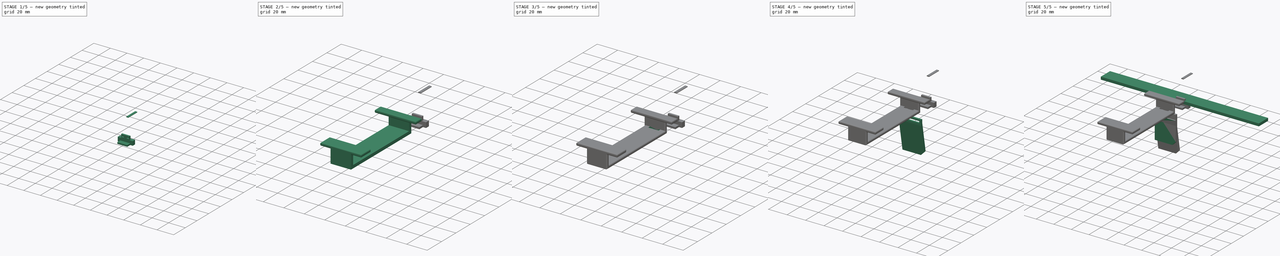
[diagram: build sequence overview — one tinted view per stage of 5, left to right]
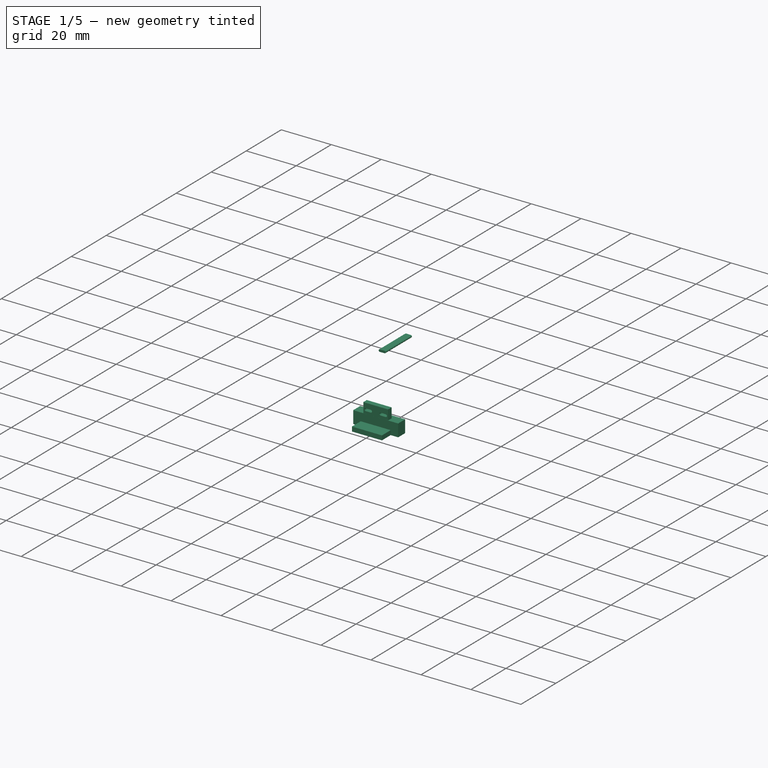
[diagram: stage 1 of 5 — iso view after this stage's code; geometry added in this stage tinted green]
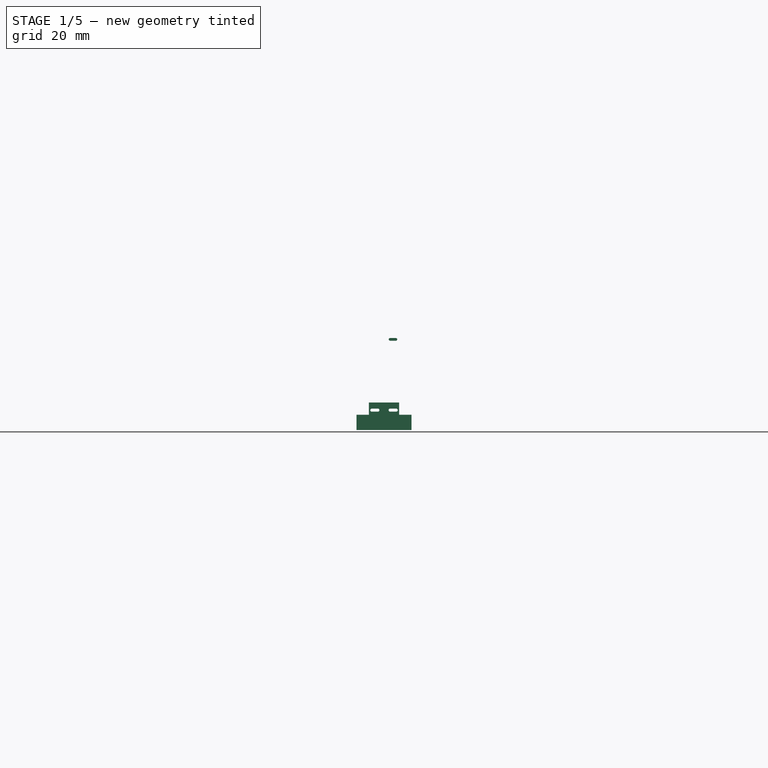
[diagram: stage 1 of 5 — front view after this stage's code; geometry added in this stage tinted green]
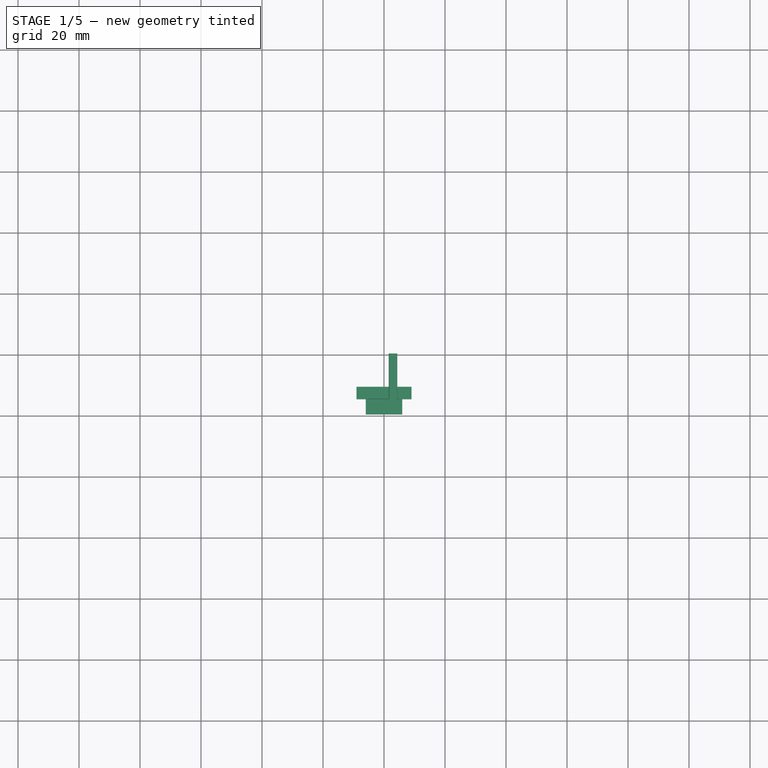
[diagram: stage 1 of 5 — top view after this stage's code; geometry added in this stage tinted green]
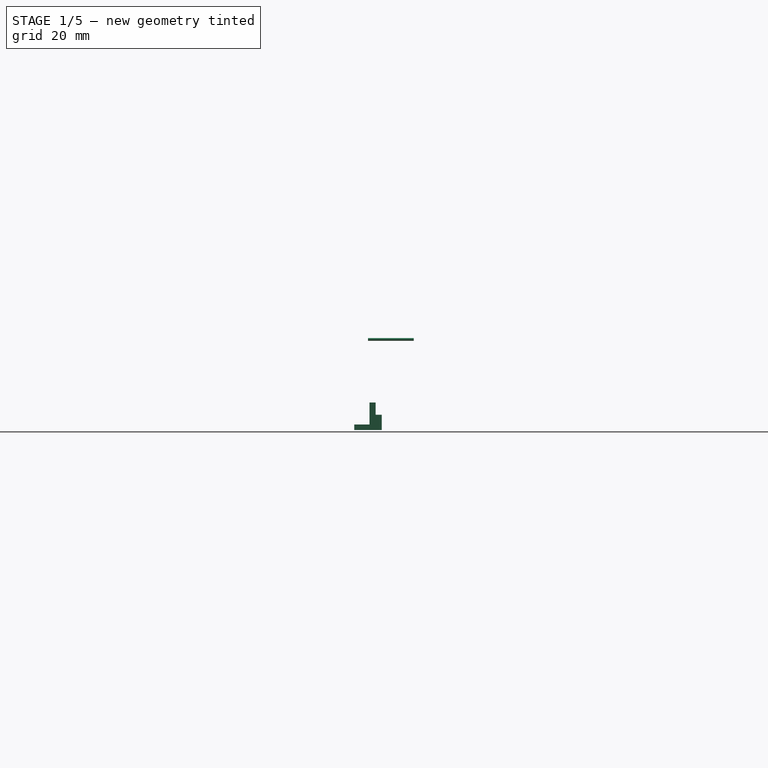
[diagram: stage 1 of 5 — right view after this stage's code; geometry added in this stage tinted green]
FCSTD DOCUMENT  (FreeCAD 0.16R)
Label: xiaomi coche
License: All rights reserved
LicenseURL: http://en.wikipedia.org/wiki/All_rights_reserved
objects: Sketcher::SketchObject×16, PartDesign::Pad×11, PartDesign::Fillet×8, PartDesign::Pocket×5, Part::Feature×4, Part::MultiFuse×1
note: 61 computed .brp shape members not serialized (recipe doc carries the construction recipe); baked Part::Feature solids carry a one-line shape summary decoded from their .brp

FEATURE [Sketcher::SketchObject] Sketch008
  Placement = pos=(0,-10.4875,0) rot=(0,0.707107,0.707107;3.14159rad)
  sketch-geometry (4):
    g0: LineSegment StartX=-9 StartY=1 StartZ=0 EndX=9 EndY=1 EndZ=0
    g1: LineSegment StartX=9 StartY=1 StartZ=0 EndX=9 EndY=-4 EndZ=0
    g2: LineSegment StartX=9 StartY=-4 StartZ=0 EndX=-9 EndY=-4 EndZ=0
    g3: LineSegment StartX=-9 StartY=-4 StartZ=0 EndX=-9 EndY=1 EndZ=0
  constraints (12):
    c: Coincident(g0,g1)
    c: Coincident(g1,g2)
    c: Coincident(g2,g3)
    c: Coincident(g3,g0)
    c: Horizontal(g0)
    c: Horizontal(g2)
    c: Vertical(g1)
    c: Vertical(g3)
    c: DistanceY(g-1,g0) = 1
    c: Symmetric(g0,g0,g-2)
    c: DistanceY(g2,g0) = 5
    c: DistanceX(g2,g2) = 18
FEATURE [PartDesign::Pad] Pad008
  Length = 4
  Length2 = 100
  Placement = pos=(0,-10.4875,0) rot=(0,0.707107,0.707107;3.14159rad)
  Reversed = true
  Sketch = -> Sketch008
  Type = 0
FEATURE [Sketcher::SketchObject] Sketch010
  Placement = pos=(0,-10.4875,1) rot=(0,0,1;0rad)
  Support = -> Pad008 [Face1]
  sketch-geometry (4):
    g0: LineSegment StartX=-4.95 StartY=-2 StartZ=0 EndX=4.95 EndY=-2 EndZ=0
    g1: LineSegment StartX=4.95 StartY=-2 StartZ=0 EndX=4.95 EndY=-3.99 EndZ=0
    g2: LineSegment StartX=4.95 StartY=-3.99 StartZ=0 EndX=-4.95 EndY=-3.99 EndZ=0
    g3: LineSegment StartX=-4.95 StartY=-3.99 StartZ=0 EndX=-4.95 EndY=-2 EndZ=0
  constraints (13):
    c: Coincident(g0,g1)
    c: Coincident(g1,g2)
    c: Coincident(g2,g3)
    c: Coincident(g3,g0)
    c: Horizontal(g0)
    c: Horizontal(g2)
    c: Vertical(g1)
    c: Vertical(g3)
    c: DistanceX(g2,g2) = 9.9
    c: Symmetric(g1,g2,g-2)
    c: DistanceY(g3,g3) = 1.99
    c: Symmetric(g1,g2,g-2)
    c: DistanceY(g-1,g0) = -2
FEATURE [PartDesign::Pad] Pad009  label="Union"
  Length = 4
  Length2 = 100
  Placement = pos=(0,-10.4875,0) rot=(0,0.707107,0.707107;3.14159rad)
  Sketch = -> Sketch010
  Type = 0
FEATURE [Sketcher::SketchObject] Sketch013
  ExternalGeometry = -> [Pad009]
  Placement = pos=(0,-12.4875,0) rot=(0,0.707107,0.707107;3.14159rad)
  Support = -> Pad009 [Face7]
  sketch-geometry (8):
    g0: ArcOfCircle CenterX=2 CenterY=2.5 CenterZ=0 NormalX=0 NormalY=0 NormalZ=1 Radius=0.5 StartAngle=1.5708 EndAngle=4.71239
    g1: ArcOfCircle CenterX=4 CenterY=2.5 CenterZ=0 NormalX=0 NormalY=0 NormalZ=1 Radius=0.5 StartAngle=4.71239 EndAngle=7.85398
    g2: LineSegment StartX=2 StartY=2 StartZ=0 EndX=4 EndY=2 EndZ=0
    g3: LineSegment StartX=2 StartY=3 StartZ=0 EndX=4 EndY=3 EndZ=0
    g4: ArcOfCircle CenterX=-4 CenterY=2.5 CenterZ=0 NormalX=0 NormalY=0 NormalZ=1 Radius=0.5 StartAngle=1.5708 EndAngle=4.71239
    g5: ArcOfCircle CenterX=-2 CenterY=2.5 CenterZ=0 NormalX=0 NormalY=0 NormalZ=1 Radius=0.5 StartAngle=4.71239 EndAngle=7.85398
    g6: LineSegment StartX=-4 StartY=2 StartZ=0 EndX=-2 EndY=2 EndZ=0
    g7: LineSegment StartX=-4 StartY=3 StartZ=0 EndX=-2 EndY=3 EndZ=0
  constraints (20):
    c: Tangent(g0,g3) = 1.5708
    c: Tangent(g0,g2) = -1.5708
    c: Tangent(g2,g1) = -1.5708
    c: Tangent(g3,g1) = 1.5708
    c: Horizontal(g2)
    c: Equal(g0,g1)
    c: Tangent(g4,g7) = 1.5708
    c: Tangent(g4,g6) = -1.5708
    c: Tangent(g6,g5) = -1.5708
    c: Tangent(g7,g5) = 1.5708
    c: Horizontal(g6)
    c: Equal(g4,g5)
    c: DistanceY(g5,g5) = 1
    c: DistanceY(g0,g0) = 1
    c: DistanceY(g-3,g0) = 1
    c: Symmetric(g5,g0,g-2)
    c: DistanceX(g5,g-1) = 2
    c: DistanceX(g4,g-1) = 4
    c: Symmetric(g1,g4,g-2)
    c: Symmetric(g1,g4,g-2)
FEATURE [PartDesign::Pocket] Pocket006
  Length = 5
  Placement = pos=(0,-10.4875,0) rot=(0,0.707107,0.707107;3.14159rad)
  Sketch = -> Sketch013
  Type = 0
FEATURE [Sketcher::SketchObject] Sketch014
  ExternalGeometry = -> [Pocket006]
  Placement = pos=(0,-14.4875,0) rot=(0,0.707107,-0.707107;3.14159rad)
  Support = -> Pocket006 [Face5]
  sketch-geometry (4):
    g0: LineSegment StartX=-6 StartY=4 StartZ=0 EndX=6 EndY=4 EndZ=0
    g1: LineSegment StartX=6 StartY=4 StartZ=0 EndX=6 EndY=2.2 EndZ=0
    g2: LineSegment StartX=6 StartY=2.2 StartZ=0 EndX=-6 EndY=2.2 EndZ=0
    g3: LineSegment StartX=-6 StartY=2.2 StartZ=0 EndX=-6 EndY=4 EndZ=0
  constraints (12):
    c: Coincident(g0,g1)
    c: Coincident(g1,g2)
    c: Coincident(g2,g3)
    c: Coincident(g3,g0)
    c: Horizontal(g0)
    c: Horizontal(g2)
    c: Vertical(g1)
    c: Vertical(g3)
    c: Symmetric(g0,g0,g-2)
    c: PointOnObject(g0,g-3)
    c: DistanceX(g2,g2) = 12
    c: DistanceY(g1,g1) = 1.8
FEATURE [PartDesign::Pad] Pad011  label="Union Final"
  Length = 5
  Length2 = 100
  Placement = pos=(0,-10.4875,0) rot=(0,0.707107,0.707107;3.14159rad)
  Sketch = -> Sketch014
  Type = 0
FEATURE [Sketcher::SketchObject] Sketch015
  Placement = pos=(0,0,0) rot=(0,0.707107,0.707107;3.14159rad)
  sketch-geometry (4):
    g0: ArcOfCircle CenterX=-3.9 CenterY=25.69 CenterZ=0 NormalX=0 NormalY=0 NormalZ=1 Radius=0.45 StartAngle=1.5708 EndAngle=4.71239
    g1: ArcOfCircle CenterX=-2 CenterY=25.69 CenterZ=0 NormalX=0 NormalY=0 NormalZ=1 Radius=0.45 StartAngle=4.71239 EndAngle=7.85398
    g2: LineSegment StartX=-3.9 StartY=25.24 StartZ=0 EndX=-2 EndY=25.24 EndZ=0
    g3: LineSegment StartX=-3.9 StartY=26.14 StartZ=0 EndX=-2 EndY=26.14 EndZ=0
  constraints (9):
    c: Tangent(g0,g3) = 1.5708
    c: Tangent(g0,g2) = -1.5708
    c: Tangent(g2,g1) = -1.5708
    c: Tangent(g3,g1) = 1.5708
    c: Horizontal(g2)
    c: Equal(g0,g1)
    c: DistanceX(g1,g-1) = 2
    c: DistanceY(g1,g1) = 0.9
    c: DistanceX(g0,g-1) = 3.9
FEATURE [PartDesign::Pad] Pad012  label="Perno union"
  Length = 15
  Length2 = 100
  Placement = pos=(0,0,0) rot=(0,0.707107,0.707107;3.14159rad)
  Reversed = true
  Sketch = -> Sketch015
  Type = 0
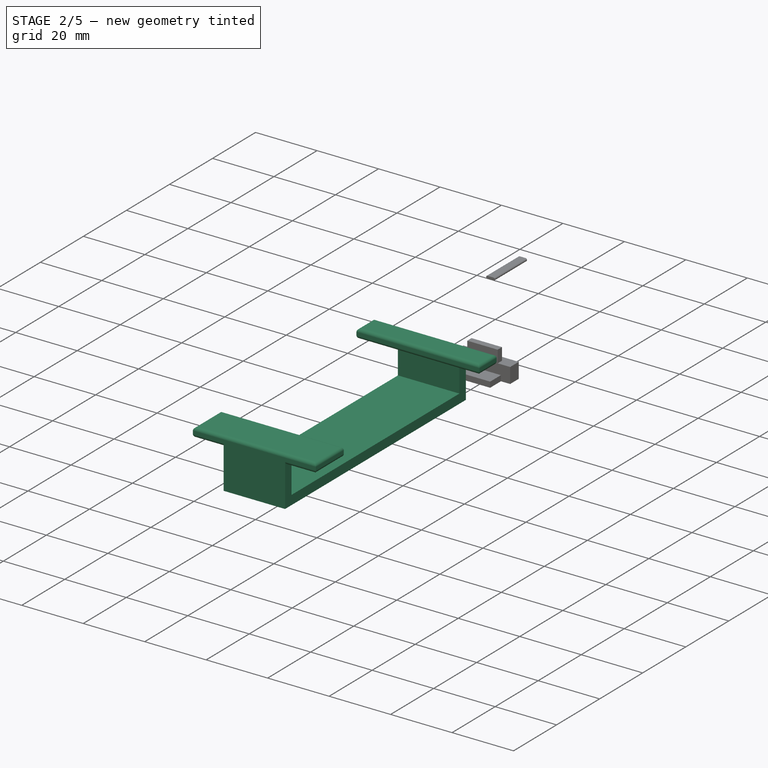
[diagram: stage 2 of 5 — iso view after this stage's code; geometry added in this stage tinted green]
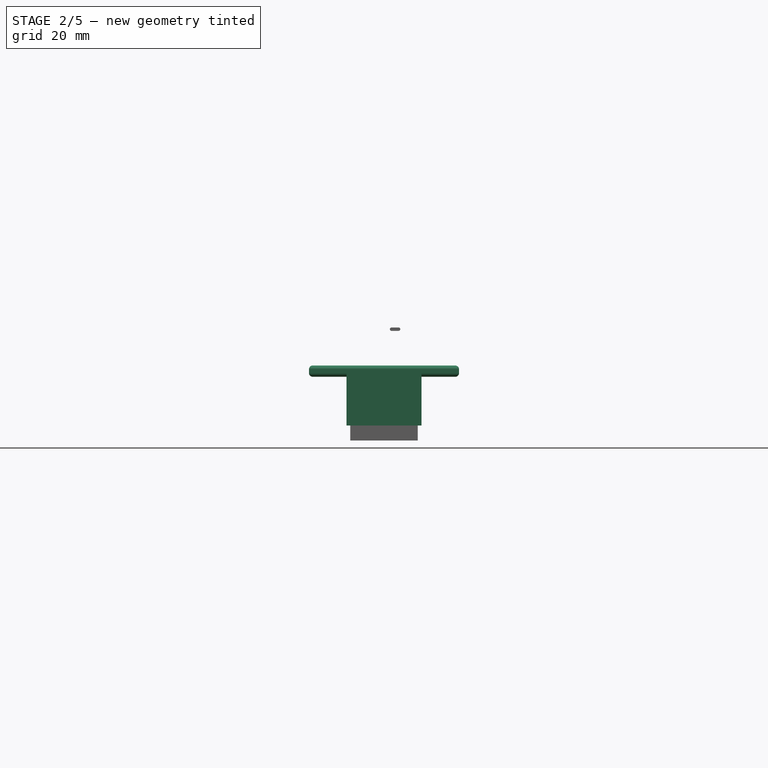
[diagram: stage 2 of 5 — front view after this stage's code; geometry added in this stage tinted green]
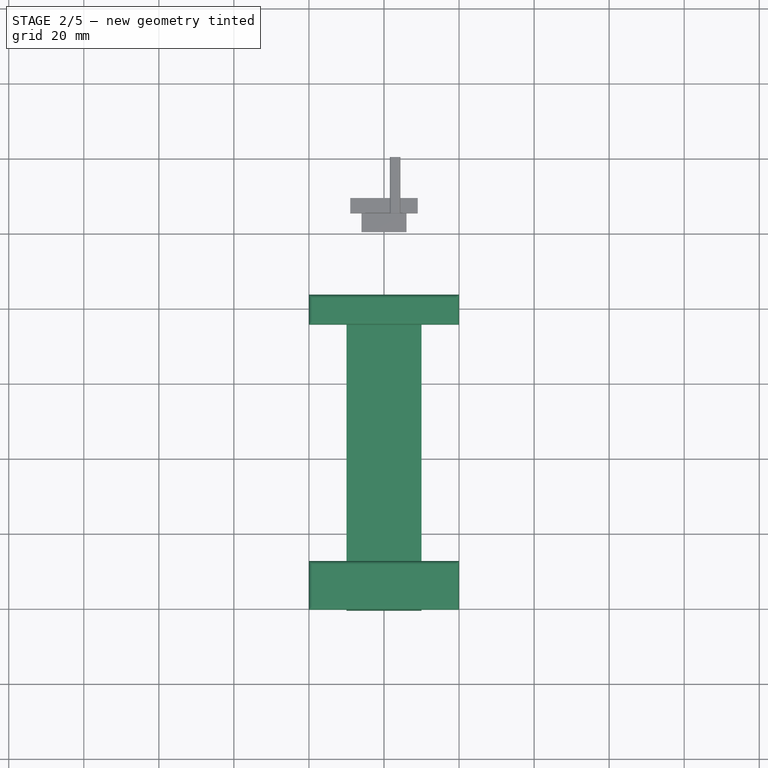
[diagram: stage 2 of 5 — top view after this stage's code; geometry added in this stage tinted green]
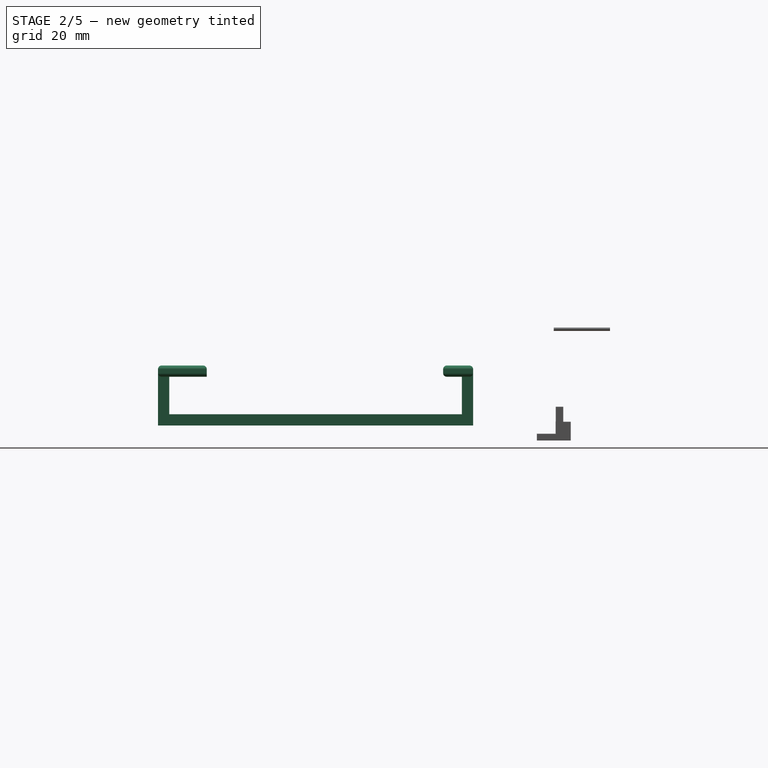
[diagram: stage 2 of 5 — right view after this stage's code; geometry added in this stage tinted green]
FEATURE [Sketcher::SketchObject] Sketch001
  sketch-geometry (4):
    g0: LineSegment StartX=-10 StartY=-36.4875 StartZ=0 EndX=10 EndY=-36.4875 EndZ=0
    g1: LineSegment StartX=10 StartY=-36.4875 StartZ=0 EndX=10 EndY=-120.487 EndZ=0
    g2: LineSegment StartX=10 StartY=-120.487 StartZ=0 EndX=-10 EndY=-120.487 EndZ=0
    g3: LineSegment StartX=-10 StartY=-120.487 StartZ=0 EndX=-10 EndY=-36.4875 EndZ=0
  constraints (11):
    c: Coincident(g0,g1)
    c: Coincident(g1,g2)
    c: Coincident(g2,g3)
    c: Coincident(g3,g0)
    c: Horizontal(g0)
    c: Horizontal(g2)
    c: Vertical(g1)
    c: Vertical(g3)
    c: Symmetric(g2,g1,g-2)
    c: DistanceX(g0,g0) = 20
    c: DistanceY(g1,g1) = 84
FEATURE [PartDesign::Pad] Pad001
  Length = 3
  Length2 = 100
  Sketch = -> Sketch001
  Type = 0
FEATURE [Sketcher::SketchObject] Sketch002
  ExternalGeometry = -> [Pad001]
  Placement = pos=(0,0,3) rot=(0,0,1;0rad)
  Support = -> Pad001 [Face6]
  sketch-geometry (8):
    g0: LineSegment StartX=-10 StartY=-117.487 StartZ=0 EndX=10 EndY=-117.487 EndZ=0
    g1: LineSegment StartX=10 StartY=-117.487 StartZ=0 EndX=10 EndY=-120.487 EndZ=0
    g2: LineSegment StartX=10 StartY=-120.487 StartZ=0 EndX=-10 EndY=-120.487 EndZ=0
    g3: LineSegment StartX=-10 StartY=-120.487 StartZ=0 EndX=-10 EndY=-117.487 EndZ=0
    g4: LineSegment StartX=-10 StartY=-36.4875 StartZ=0 EndX=10 EndY=-36.4875 EndZ=0
    g5: LineSegment StartX=10 StartY=-36.4875 StartZ=0 EndX=10 EndY=-39.4875 EndZ=0
    g6: LineSegment StartX=10 StartY=-39.4875 StartZ=0 EndX=-10 EndY=-39.4875 EndZ=0
    g7: LineSegment StartX=-10 StartY=-39.4875 StartZ=0 EndX=-10 EndY=-36.4875 EndZ=0
  constraints (22):
    c: Coincident(g0,g1)
    c: Coincident(g1,g2)
    c: Coincident(g2,g3)
    c: Coincident(g3,g0)
    c: Horizontal(g0)
    c: Horizontal(g2)
    c: Vertical(g1)
    c: Vertical(g3)
    c: Coincident(g4,g5)
    c: Coincident(g5,g6)
    c: Coincident(g6,g7)
    c: Coincident(g7,g4)
    c: Horizontal(g4)
    c: Horizontal(g6)
    c: Vertical(g5)
    c: Vertical(g7)
    c: Coincident(g4,g-3)
    c: Coincident(g4,g-3)
    c: Coincident(g1,g-4)
    c: Coincident(g2,g-4)
    c: DistanceY(g2,g0) = 3
    c: DistanceY(g6,g4) = 3
FEATURE [PartDesign::Pad] Pad002
  Length = 10
  Length2 = 100
  Sketch = -> Sketch002
  Type = 0
FEATURE [Sketcher::SketchObject] Sketch003
  ExternalGeometry = -> [Pad002]
  Placement = pos=(0,0,13) rot=(0,0,1;0rad)
  Support = -> Pad002 [Face3]
  sketch-geometry (8):
    g0: LineSegment StartX=-20 StartY=-36.4875 StartZ=0 EndX=20 EndY=-36.4875 EndZ=0
    g1: LineSegment StartX=20 StartY=-36.4875 StartZ=0 EndX=20 EndY=-44.4875 EndZ=0
    g2: LineSegment StartX=20 StartY=-44.4875 StartZ=0 EndX=-20 EndY=-44.4875 EndZ=0
    g3: LineSegment StartX=-20 StartY=-44.4875 StartZ=0 EndX=-20 EndY=-36.4875 EndZ=0
    g4: LineSegment StartX=-20 StartY=-107.487 StartZ=0 EndX=20 EndY=-107.487 EndZ=0
    g5: LineSegment StartX=20 StartY=-107.487 StartZ=0 EndX=20 EndY=-120.487 EndZ=0
    g6: LineSegment StartX=20 StartY=-120.487 StartZ=0 EndX=-20 EndY=-120.487 EndZ=0
    g7: LineSegment StartX=-20 StartY=-120.487 StartZ=0 EndX=-20 EndY=-107.487 EndZ=0
  constraints (24):
    c: Coincident(g0,g1)
    c: Coincident(g1,g2)
    c: Coincident(g2,g3)
    c: Coincident(g3,g0)
    c: Horizontal(g0)
    c: Horizontal(g2)
    c: Vertical(g1)
    c: Vertical(g3)
    c: Coincident(g4,g5)
    c: Coincident(g5,g6)
    c: Coincident(g6,g7)
    c: Coincident(g7,g4)
    c: Horizontal(g4)
    c: Horizontal(g6)
    c: Vertical(g5)
    c: Vertical(g7)
    c: Symmetric(g5,g6,g-2)
    c: Symmetric(g0,g0,g-2)
    c: PointOnObject(g-3,g0)
    c: PointOnObject(g-4,g6)
    c: DistanceX(g4,g4) = 40
    c: DistanceX(g2,g2) = 40
    c: DistanceY(g5,g5) = 13
    c: DistanceY(g1,g1) = 8
FEATURE [PartDesign::Pad] Pad003
  Length = 3
  Length2 = 100
  Sketch = -> Sketch003
  Type = 0
FEATURE [PartDesign::Fillet] Fillet
  Base = -> Pad003 [Edge44,Edge29,Edge46,Edge42,Edge48,Edge32,Edge31,Edge30]
  Radius = 1
FEATURE [PartDesign::Fillet] Fillet001
  Base = -> Fillet [Edge60,Edge62,Edge43,Edge63,Edge40,Edge35,Edge37,Edge38,Edge39]
  Radius = 1
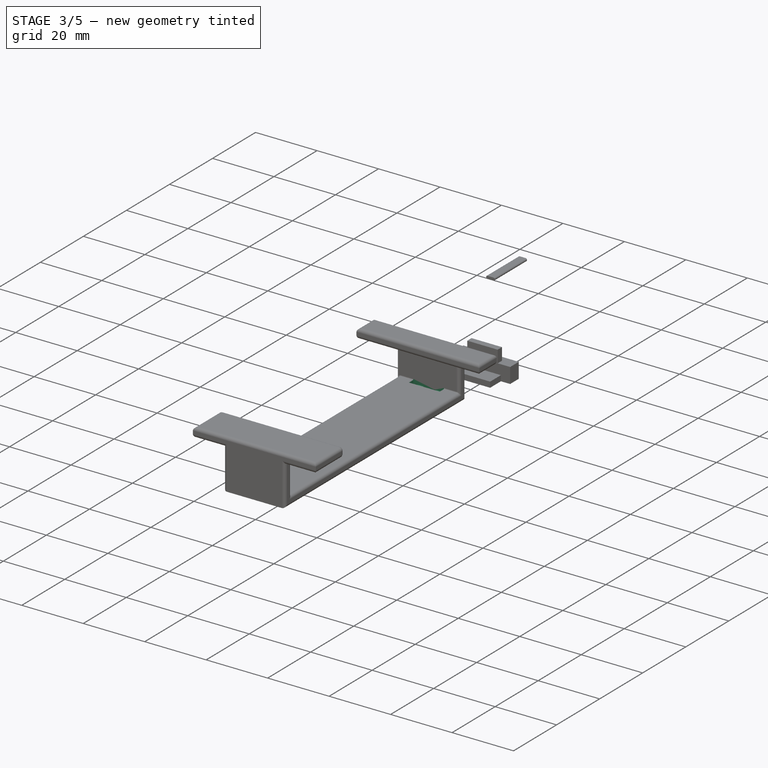
[diagram: stage 3 of 5 — iso view after this stage's code; geometry added in this stage tinted green]
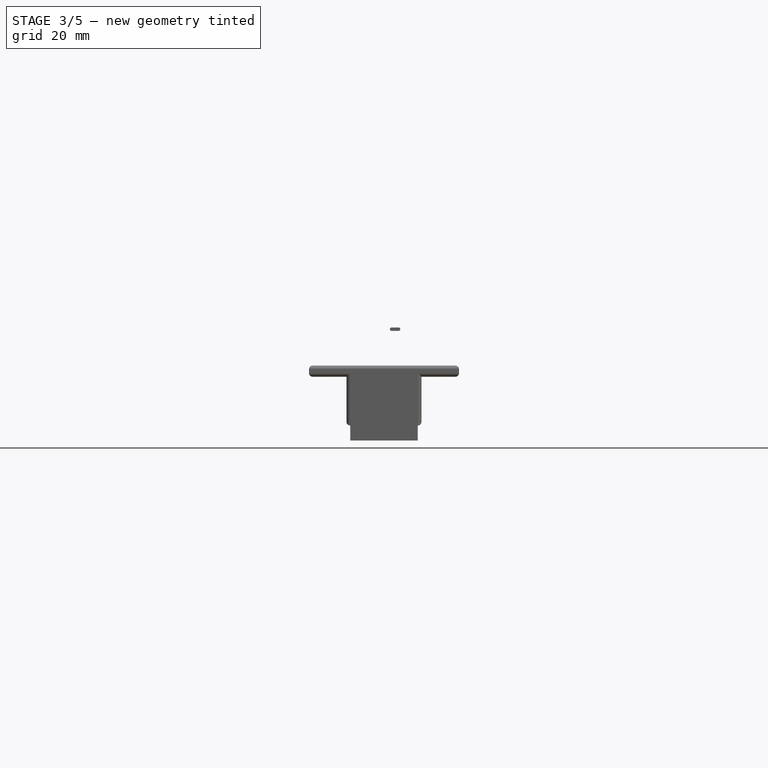
[diagram: stage 3 of 5 — front view after this stage's code; geometry added in this stage tinted green]
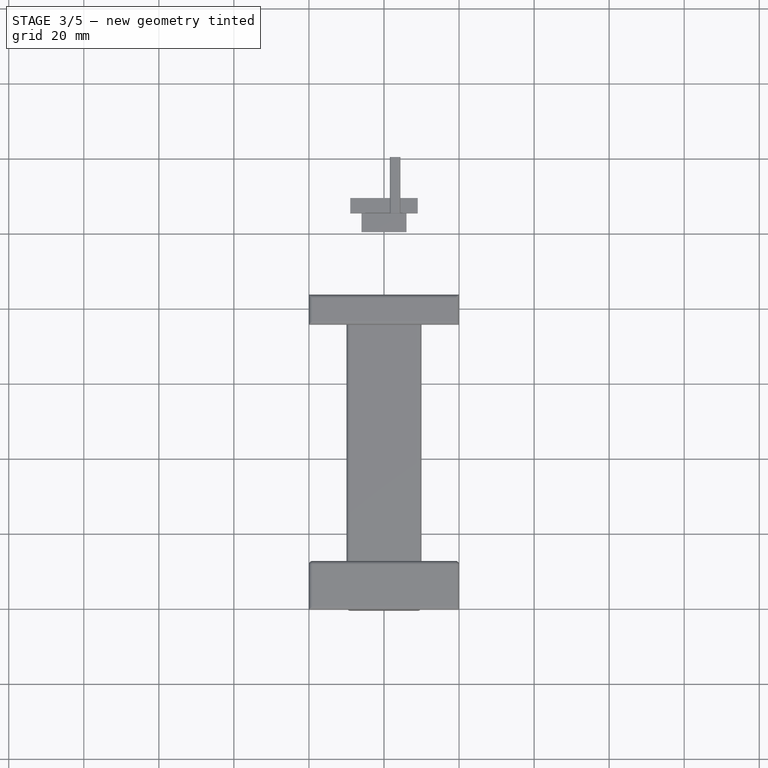
[diagram: stage 3 of 5 — top view after this stage's code; geometry added in this stage tinted green]
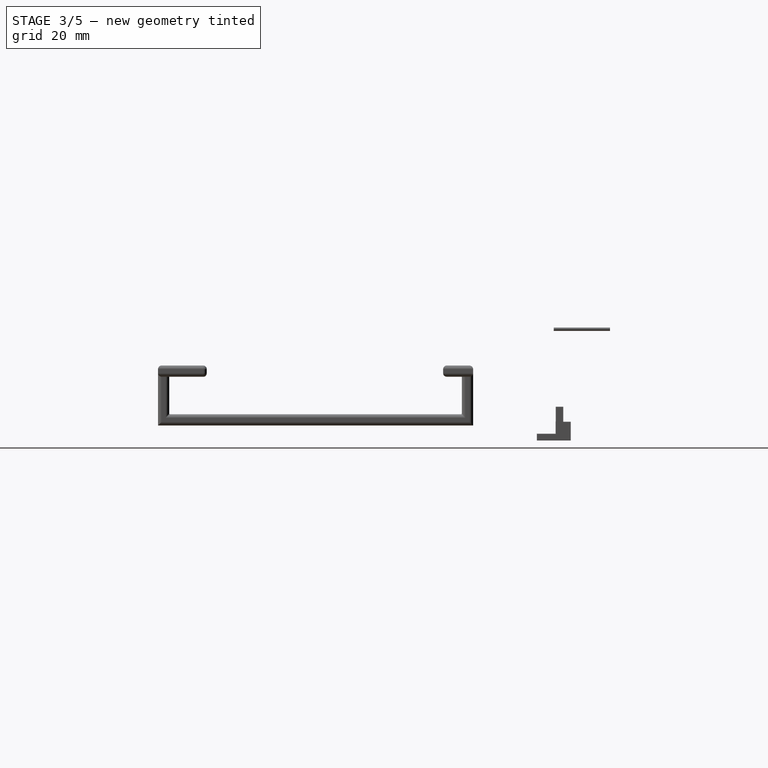
[diagram: stage 3 of 5 — right view after this stage's code; geometry added in this stage tinted green]
FEATURE [PartDesign::Fillet] Fillet002
  Base = -> Fillet001 [Edge32,Edge33,Edge49,Edge36,Edge29,Edge3,Edge6,Edge8,Edge5,Edge7,Edge10]
  Radius = 1
FEATURE [PartDesign::Fillet] Fillet003
  Base = -> Fillet002 [Edge38,Edge68]
  Radius = 0.3
FEATURE [PartDesign::Fillet] Fillet004
  Base = -> Fillet003 [Edge66]
  Radius = 0.9
FEATURE [Sketcher::SketchObject] Sketch009
  ExternalGeometry = -> [Fillet004]
  Placement = pos=(0,0,0) rot=(1,0,0;3.14159rad)
  Support = -> Fillet004 [Face39]
  sketch-geometry (4):
    g0: LineSegment StartX=-5 StartY=41.4875 StartZ=0 EndX=5 EndY=41.4875 EndZ=0
    g1: LineSegment StartX=5 StartY=41.4875 StartZ=0 EndX=5 EndY=39.4875 EndZ=0
    g2: LineSegment StartX=5 StartY=39.4875 StartZ=0 EndX=-5 EndY=39.4875 EndZ=0
    g3: LineSegment StartX=-5 StartY=39.4875 StartZ=0 EndX=-5 EndY=41.4875 EndZ=0
  constraints (12):
    c: Coincident(g0,g1)
    c: Coincident(g1,g2)
    c: Coincident(g2,g3)
    c: Coincident(g3,g0)
    c: Horizontal(g0)
    c: Horizontal(g2)
    c: Vertical(g1)
    c: Vertical(g3)
    c: Symmetric(g2,g1,g-2)
    c: DistanceX(g0,g0) = 10
    c: DistanceY(g1,g0) = 2
    c: DistanceY(g-3,g2) = 3
FEATURE [PartDesign::Pocket] Pocket004  label="Soporte Movil"
  Length = 5
  Sketch = -> Sketch009
  Type = 0
FEATURE [Sketcher::SketchObject] Sketch012
  Placement = pos=(0,-36.4875,0) rot=(0,0.707107,0.707107;3.14159rad)
  Support = -> Pocket004 [Face44]
  sketch-geometry (8):
    g0: ArcOfCircle CenterX=-4 CenterY=1.5 CenterZ=0 NormalX=0 NormalY=0 NormalZ=1 Radius=0.5 StartAngle=1.5708 EndAngle=4.71239
    g1: ArcOfCircle CenterX=-2 CenterY=1.5 CenterZ=0 NormalX=0 NormalY=0 NormalZ=1 Radius=0.5 StartAngle=4.71239 EndAngle=7.85398
    g2: LineSegment StartX=-4 StartY=1 StartZ=0 EndX=-2 EndY=1 EndZ=0
    g3: LineSegment StartX=-4 StartY=2 StartZ=0 EndX=-2 EndY=2 EndZ=0
    g4: ArcOfCircle CenterX=2 CenterY=1.5 CenterZ=0 NormalX=0 NormalY=0 NormalZ=1 Radius=0.5 StartAngle=1.5708 EndAngle=4.71239
    g5: ArcOfCircle CenterX=4 CenterY=1.5 CenterZ=0 NormalX=0 NormalY=0 NormalZ=1 Radius=0.5 StartAngle=4.71239 EndAngle=7.85398
    g6: LineSegment StartX=2 StartY=1 StartZ=0 EndX=4 EndY=1 EndZ=0
    g7: LineSegment StartX=2 StartY=2 StartZ=0 EndX=4 EndY=2 EndZ=0
  constraints (19):
    c: Tangent(g0,g3) = 1.5708
    c: Tangent(g0,g2) = -1.5708
    c: Tangent(g2,g1) = -1.5708
    c: Tangent(g3,g1) = 1.5708
    c: Horizontal(g2)
    c: Equal(g0,g1)
    c: Tangent(g4,g7) = 1.5708
    c: Tangent(g4,g6) = -1.5708
    c: Tangent(g6,g5) = -1.5708
    c: Tangent(g7,g5) = 1.5708
    c: Horizontal(g6)
    c: Equal(g4,g5)
    c: Symmetric(g1,g4,g-2)
    c: Symmetric(g5,g0,g-2)
    c: DistanceY(g-1,g1) = 1
    c: DistanceX(g-1,g4) = 2
    c: DistanceX(g-1,g5) = 4
    c: DistanceY(g5,g5) = 1
    c: DistanceY(g0,g0) = 1
FEATURE [PartDesign::Pocket] Pocket005  label="Soporte Movil Final"
  Length = 20
  Sketch = -> Sketch012
  Type = 0
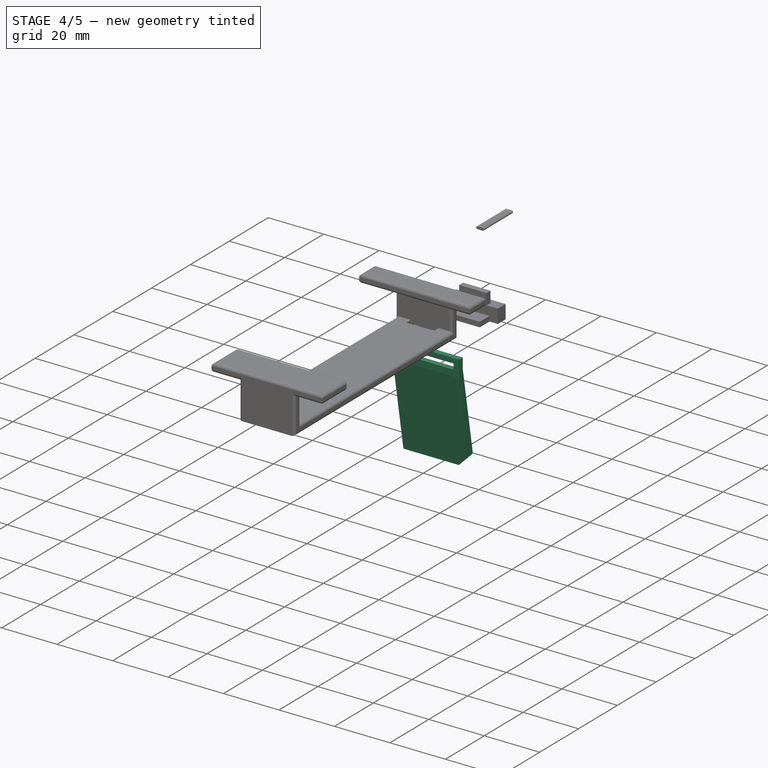
[diagram: stage 4 of 5 — iso view after this stage's code; geometry added in this stage tinted green]
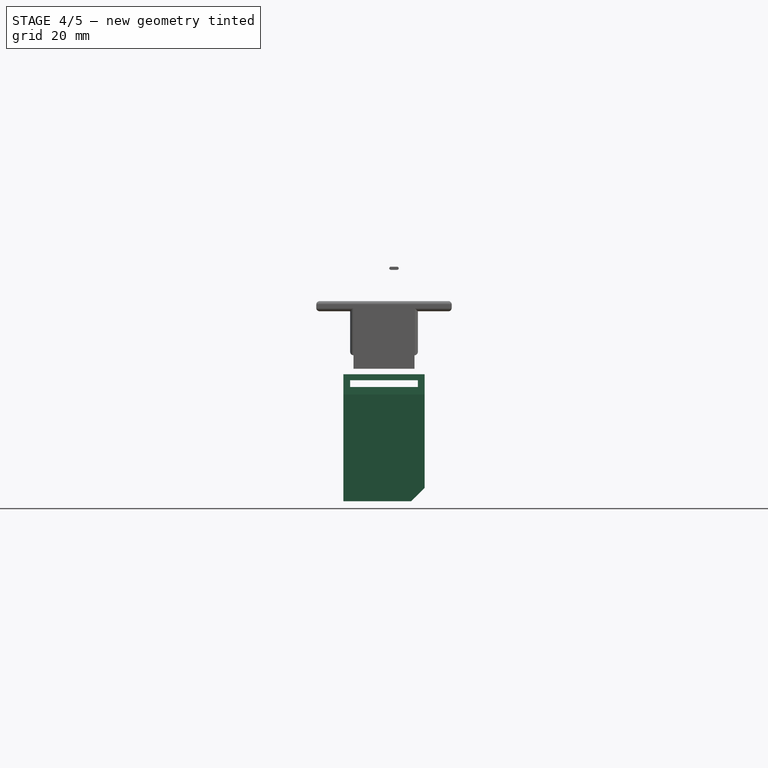
[diagram: stage 4 of 5 — front view after this stage's code; geometry added in this stage tinted green]
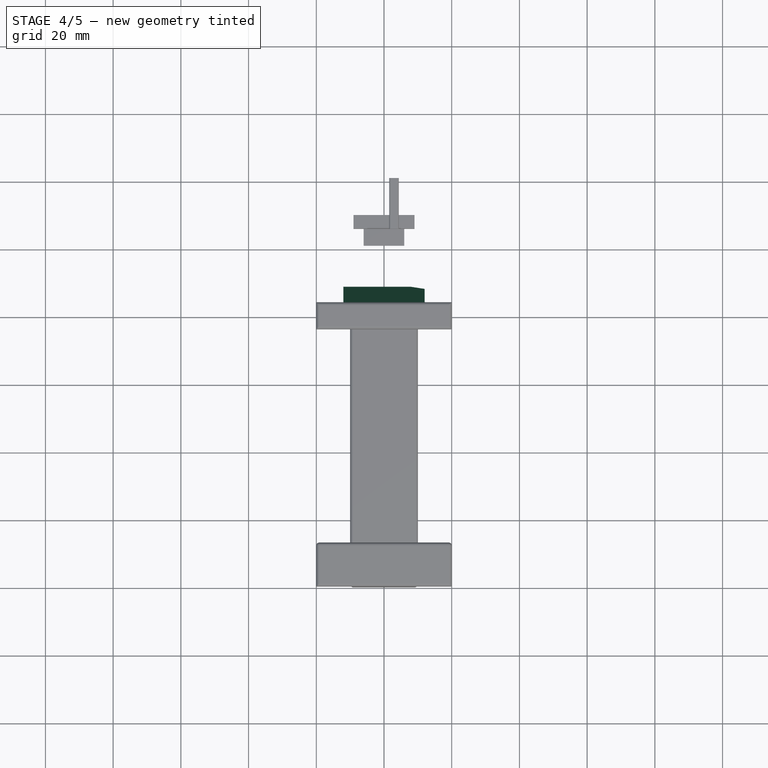
[diagram: stage 4 of 5 — top view after this stage's code; geometry added in this stage tinted green]
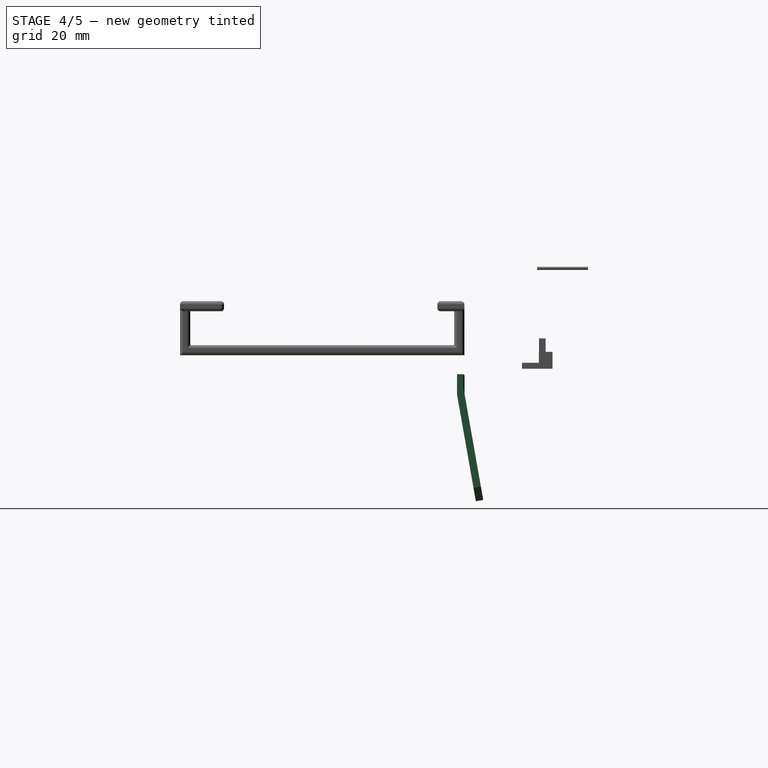
[diagram: stage 4 of 5 — right view after this stage's code; geometry added in this stage tinted green]
FEATURE [Part::Feature] Pad006
  Placement = pos=(0,4.58709e-07,-11.216) rot=(0,0,1;0rad)
  shape: bbox 24 x 2.22 x 6 mm, 6 faces (baked)
FEATURE [Part::Feature] Pad007
  Placement = pos=(0,0.0337272,-11.6015) rot=(0,0,1;0rad)
  shape: bbox 24 x 2.22 x 6 mm, 6 faces (baked)
FEATURE [Part::MultiFuse] Fusion
  Shapes = -> [Pad007,Pocket002]
FEATURE [Sketcher::SketchObject] Sketch007
  ExternalGeometry = -> [Fusion]
  Placement = pos=(0,-36.4537,0) rot=(0,0.707107,0.707107;3.14159rad)
  Support = -> Fusion [Face2]
  sketch-geometry (4):
    g0: LineSegment StartX=-10 StartY=-7.3901 StartZ=0 EndX=10 EndY=-7.3901 EndZ=0
    g1: LineSegment StartX=10 StartY=-7.3901 StartZ=0 EndX=10 EndY=-9.3901 EndZ=0
    g2: LineSegment StartX=10 StartY=-9.3901 StartZ=0 EndX=-10 EndY=-9.3901 EndZ=0
    g3: LineSegment StartX=-10 StartY=-9.3901 StartZ=0 EndX=-10 EndY=-7.3901 EndZ=0
  constraints (11):
    c: Coincident(g0,g1)
    c: Coincident(g1,g2)
    c: Coincident(g2,g3)
    c: Coincident(g3,g0)
    c: Horizontal(g0)
    c: Horizontal(g2)
    c: Vertical(g1)
    c: Vertical(g3)
    c: DistanceX(g0,g0) = 20
    c: DistanceY(g3,g3) = 2
    c: Symmetric(g1,g2,g-2)
FEATURE [PartDesign::Pocket] Pocket003
  Length = 5
  Sketch = -> Sketch007
  Type = 0
FEATURE [PartDesign::Fillet] Fillet007
  Base = -> Pocket003 [Edge11,Edge9,Edge8,Edge10]
  Radius = 0.5
FEATURE [PartDesign::Fillet] Fillet008
  Base = -> Fillet007 [Edge7,Edge8,Edge6]
  Radius = 0.5
FEATURE [Sketcher::SketchObject] Sketch011
  ExternalGeometry = -> [Pad009]
  Placement = pos=(0,-14.4875,0) rot=(0,0.707107,-0.707107;3.14159rad)
  Support = -> Pad009 [Face5]
  sketch-geometry (4):
    g0: LineSegment StartX=-6 StartY=4 StartZ=0 EndX=6 EndY=4 EndZ=0
    g1: LineSegment StartX=6 StartY=4 StartZ=0 EndX=6 EndY=2.2 EndZ=0
    g2: LineSegment StartX=6 StartY=2.2 StartZ=0 EndX=-6 EndY=2.2 EndZ=0
    g3: LineSegment StartX=-6 StartY=2.2 StartZ=0 EndX=-6 EndY=4 EndZ=0
  constraints (12):
    c: Coincident(g0,g1)
    c: Coincident(g1,g2)
    c: Coincident(g2,g3)
    c: Coincident(g3,g0)
    c: Horizontal(g0)
    c: Horizontal(g2)
    c: Vertical(g1)
    c: Vertical(g3)
    c: PointOnObject(g0,g-3)
    c: DistanceX(g2,g2) = 12
    c: Symmetric(g1,g2,g-2)
    c: DistanceY(g1,g0) = 1.8
FEATURE [PartDesign::Pad] Pad010
  Length = 4
  Length2 = 100
  Placement = pos=(0,-10.4875,0) rot=(0,0.707107,0.707107;3.14159rad)
  Sketch = -> Sketch011
  Type = 0
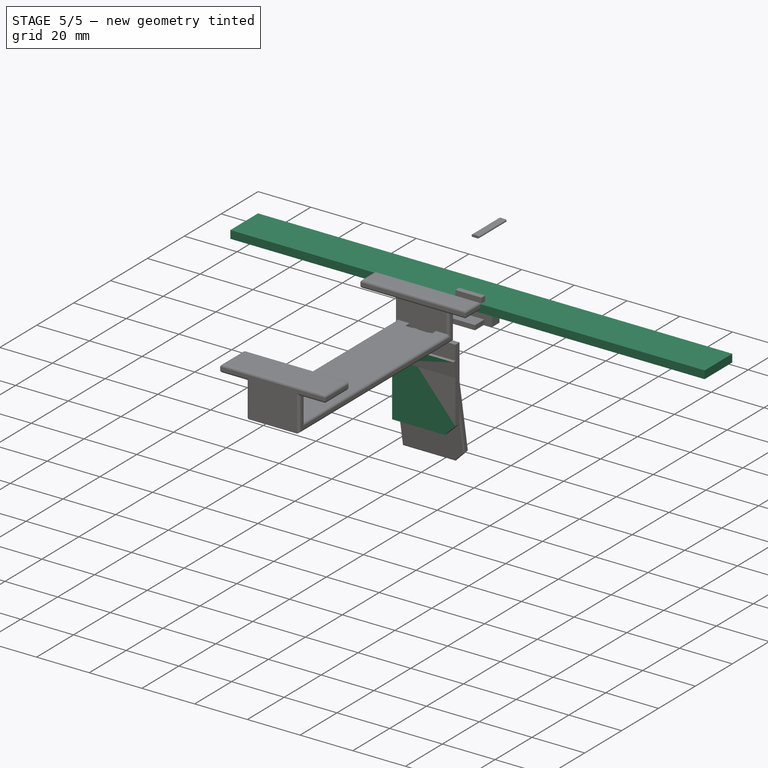
[diagram: stage 5 of 5 — iso view after this stage's code; geometry added in this stage tinted green]
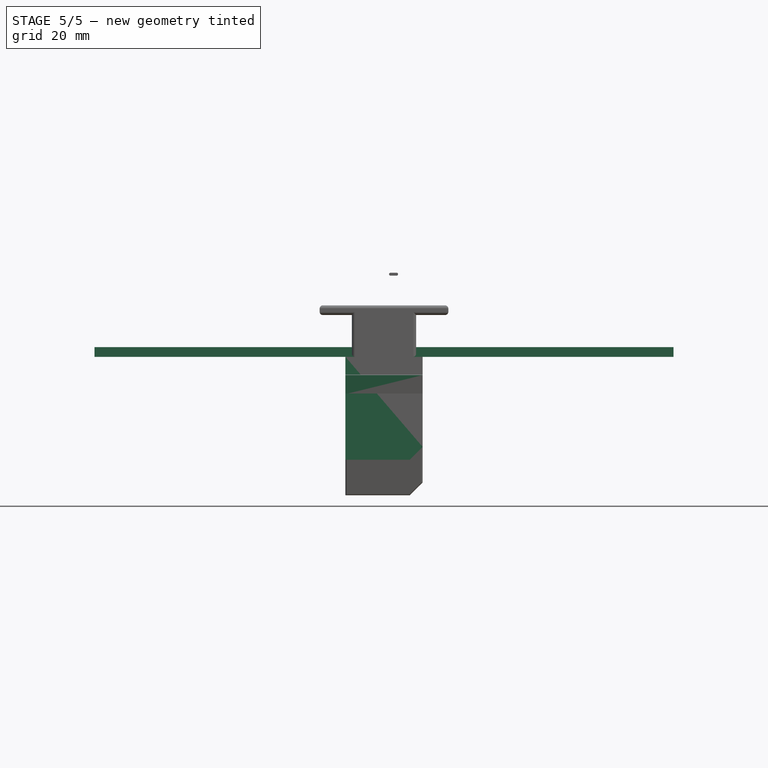
[diagram: stage 5 of 5 — front view after this stage's code; geometry added in this stage tinted green]
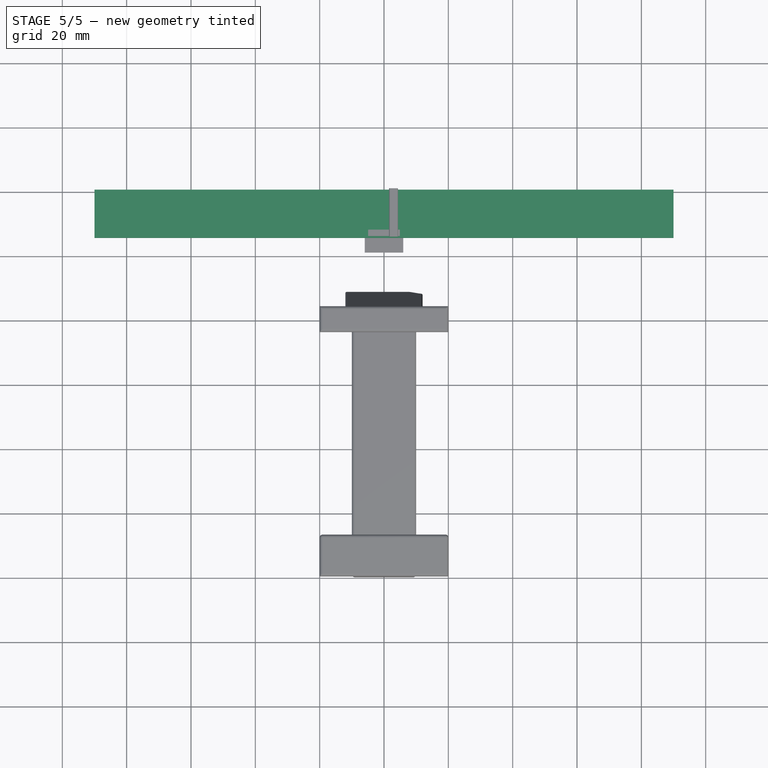
[diagram: stage 5 of 5 — top view after this stage's code; geometry added in this stage tinted green]
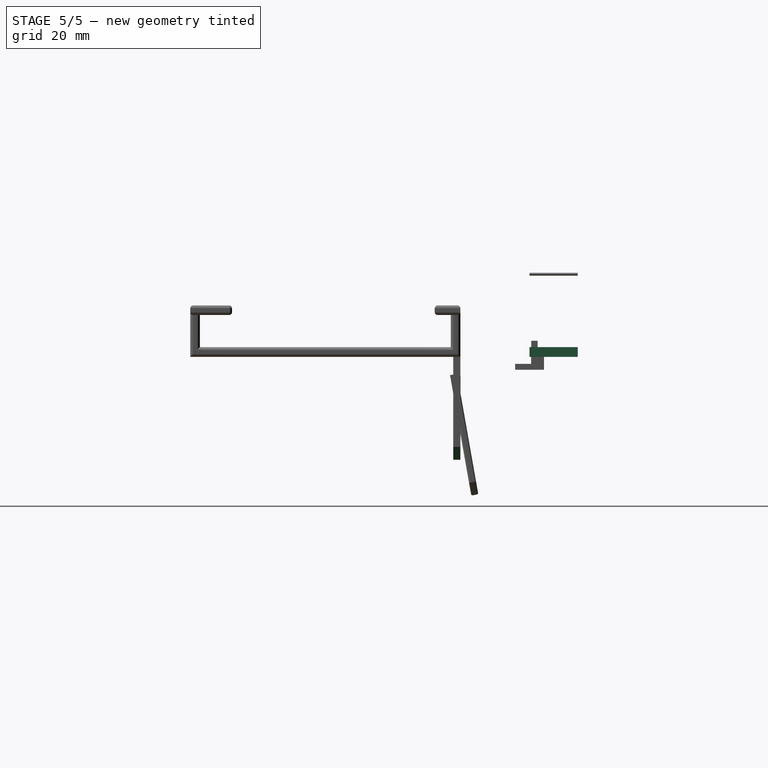
[diagram: stage 5 of 5 — right view after this stage's code; geometry added in this stage tinted green]
FEATURE [Sketcher::SketchObject] Sketch
  sketch-geometry (4):
    g0: LineSegment StartX=-90 StartY=0 StartZ=0 EndX=90 EndY=0 EndZ=0
    g1: LineSegment StartX=90 StartY=0 StartZ=0 EndX=90 EndY=-15 EndZ=0
    g2: LineSegment StartX=90 StartY=-15 StartZ=0 EndX=-90 EndY=-15 EndZ=0
    g3: LineSegment StartX=-90 StartY=-15 StartZ=0 EndX=-90 EndY=0 EndZ=0
  constraints (12):
    c: Coincident(g0,g1)
    c: Coincident(g1,g2)
    c: Coincident(g2,g3)
    c: Coincident(g3,g0)
    c: Horizontal(g0)
    c: Horizontal(g2)
    c: Vertical(g1)
    c: Vertical(g3)
    c: PointOnObject(g0,g-1)
    c: DistanceX(g0,g0) = 180
    c: Symmetric(g0,g0,g-2)
    c: DistanceY(g3,g3) = 15
FEATURE [PartDesign::Pad] Pad
  Length = 3
  Length2 = 100
  Sketch = -> Sketch
  Type = 0
FEATURE [Sketcher::SketchObject] Sketch004
  Placement = pos=(0,0,0) rot=(1,0,0;3.14159rad)
  sketch-geometry (4):
    g0: LineSegment StartX=-12 StartY=38.7075 StartZ=0 EndX=12 EndY=38.7075 EndZ=0
    g1: LineSegment StartX=12 StartY=38.7075 StartZ=0 EndX=12 EndY=36.4875 EndZ=0
    g2: LineSegment StartX=12 StartY=36.4875 StartZ=0 EndX=-12 EndY=36.4875 EndZ=0
    g3: LineSegment StartX=-12 StartY=36.4875 StartZ=0 EndX=-12 EndY=38.7075 EndZ=0
  constraints (11):
    c: Coincident(g0,g1)
    c: Coincident(g1,g2)
    c: Coincident(g2,g3)
    c: Coincident(g3,g0)
    c: Horizontal(g0)
    c: Horizontal(g2)
    c: Vertical(g1)
    c: Vertical(g3)
    c: DistanceX(g2,g2) = 24
    c: Symmetric(g2,g1,g-2)
    c: DistanceY(g3,g3) = 2.22
FEATURE [PartDesign::Pad] Pad004
  Length = 32
  Length2 = 100
  Placement = pos=(0,0,0) rot=(1,0,0;3.14159rad)
  Sketch = -> Sketch004
  Type = 0
FEATURE [Sketcher::SketchObject] Sketch005
  Placement = pos=(0,-36.4875,0) rot=(0,0.707107,0.707107;3.14159rad)
  Support = -> Pad004 [Face62]
  sketch-geometry (3):
    g0: LineSegment StartX=-12 StartY=-28 StartZ=0 EndX=-8 EndY=-32 EndZ=0
    g1: LineSegment StartX=-8 StartY=-32 StartZ=0 EndX=-12 EndY=-32 EndZ=0
    g2: LineSegment StartX=-12 StartY=-32 StartZ=0 EndX=-12 EndY=-28 EndZ=0
FEATURE [PartDesign::Pocket] Pocket
  Length = 5
  Placement = pos=(0,0,0) rot=(1,0,0;3.14159rad)
  Sketch = -> Sketch005
  Type = 0
FEATURE [Part::Feature] Pocket001
  Placement = pos=(0,-0.554326,6.33598) rot=(1,0,0;3.31613rad)
  shape: bbox 24 x 7.743 x 31.9 mm, 7 faces (baked)
FEATURE [Part::Feature] Pocket002
  Placement = pos=(0,-0.554326,-4.88004) rot=(1,0,0;3.31613rad)
  shape: bbox 24 x 7.743 x 31.9 mm, 7 faces (baked)
FEATURE [Sketcher::SketchObject] Sketch006
  Placement = pos=(0,-0.554326,-4.88004) rot=(1,0,0;0.174533rad)
  sketch-geometry (4):
    g0: LineSegment StartX=-12 StartY=-36.4875 StartZ=0 EndX=12 EndY=-36.4875 EndZ=0
    g1: LineSegment StartX=12 StartY=-36.4875 StartZ=0 EndX=12 EndY=-38.7075 EndZ=0
    g2: LineSegment StartX=12 StartY=-38.7075 StartZ=0 EndX=-12 EndY=-38.7075 EndZ=0
    g3: LineSegment StartX=-12 StartY=-38.7075 StartZ=0 EndX=-12 EndY=-36.4875 EndZ=0
  constraints (8):
    c: Coincident(g0,g1)
    c: Coincident(g1,g2)
    c: Coincident(g2,g3)
    c: Coincident(g3,g0)
    c: Horizontal(g0)
    c: Horizontal(g2)
    c: Vertical(g1)
    c: Vertical(g3)
FEATURE [PartDesign::Pad] Pad005
  Length = 6
  Length2 = 100
  Placement = pos=(0,-0.554326,-4.88004) rot=(1,0,0;0.174533rad)
  Sketch = -> Sketch006
  Type = 0
FEATURE [PartDesign::Fillet] Fillet009  label="Tarjeta"
  Base = -> Fillet008 [Edge14,Edge36,Edge40,Edge16,Edge38,Edge15,Edge32,Edge13]
  Radius = 0.5
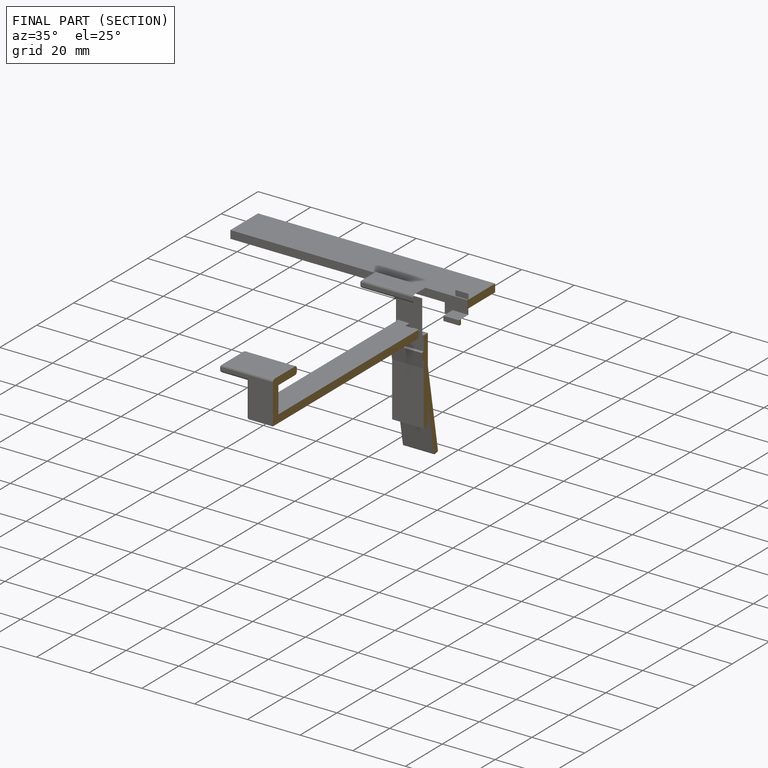
[diagram: finished part — half-section view (interior)]
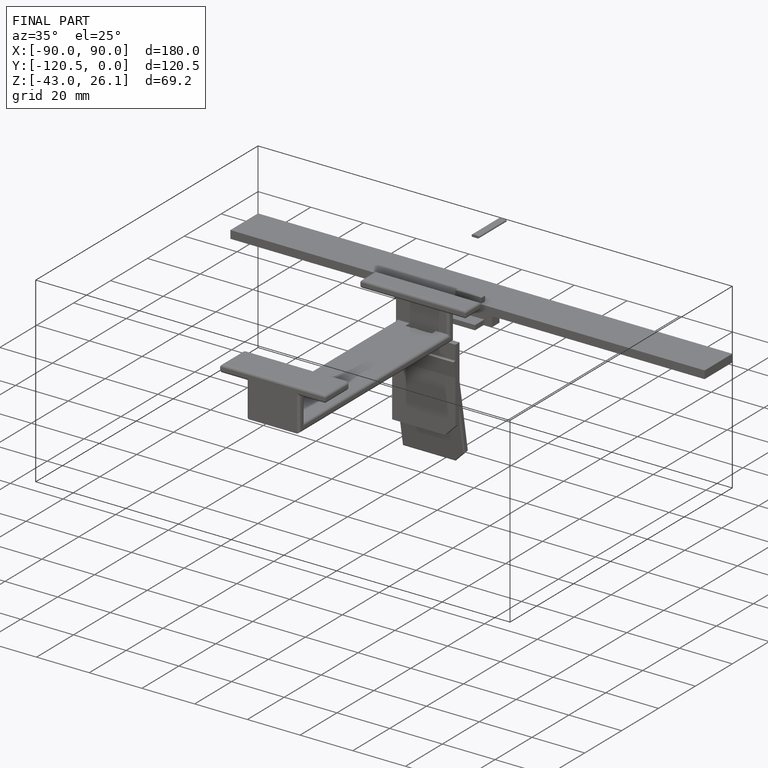
[diagram: finished part — iso view with bounding-box wireframe]
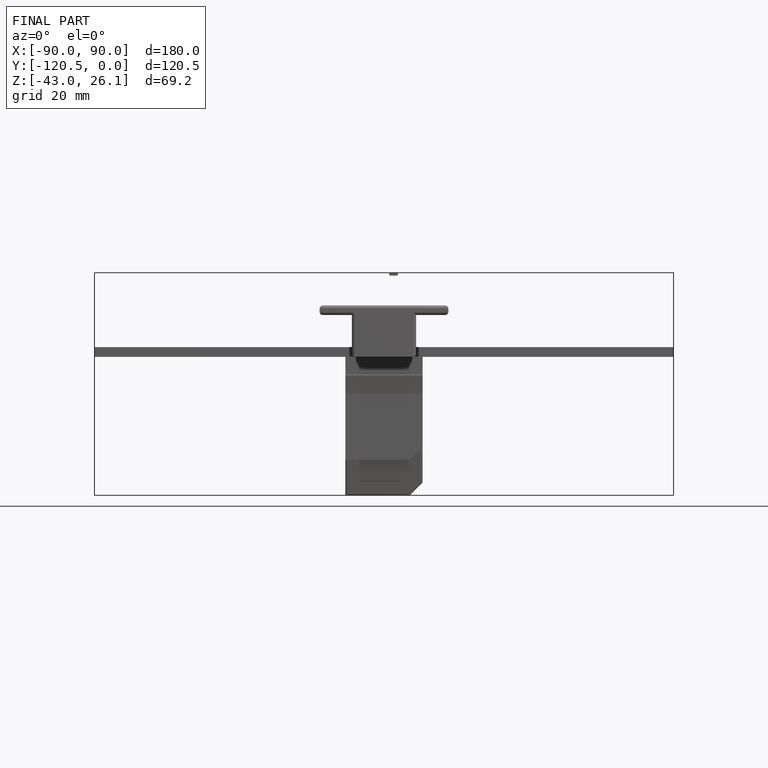
[diagram: finished part — front view with bounding-box wireframe]
